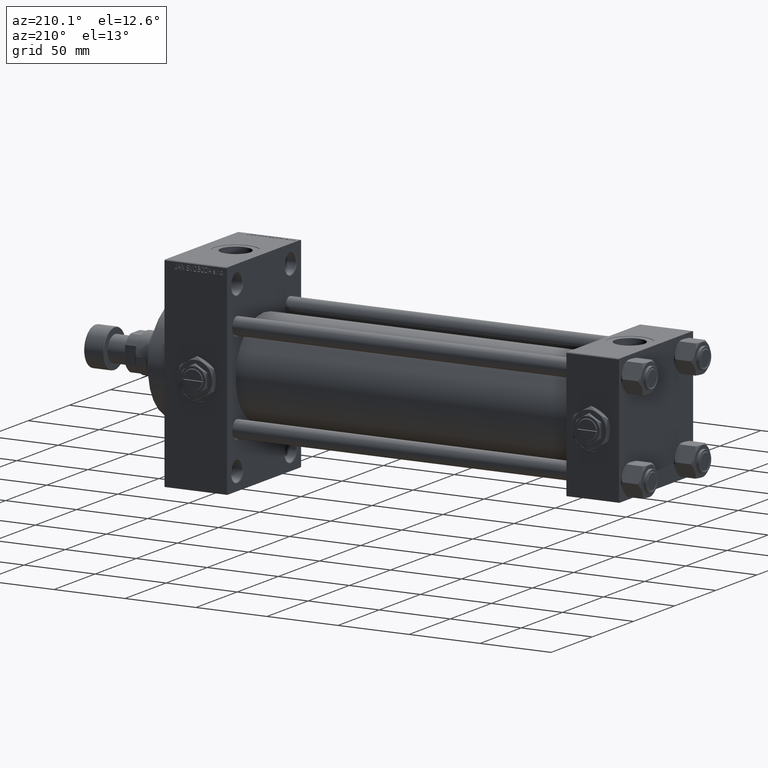
[diagram: clean part render]
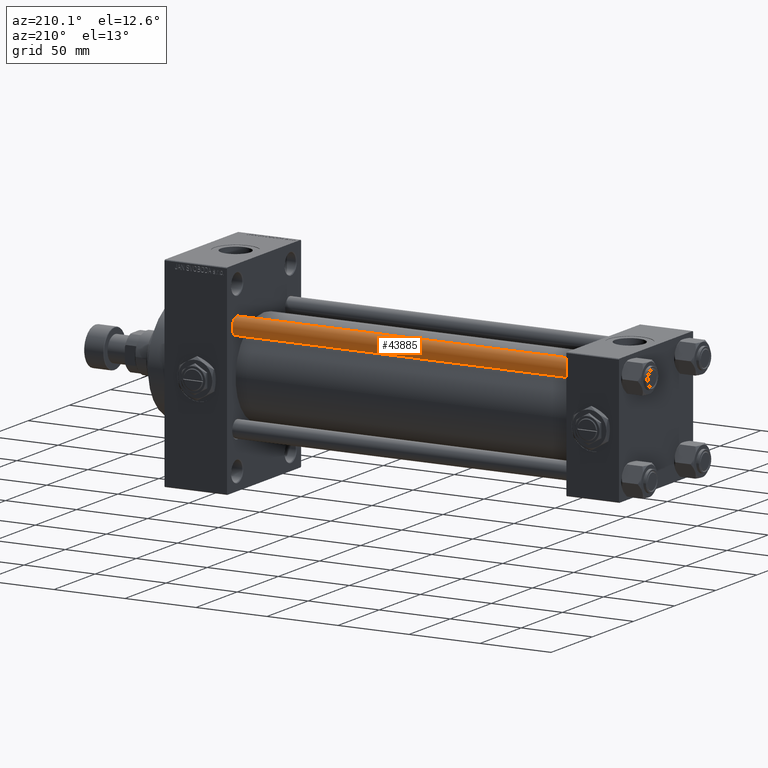
[diagram: same view with one face highlighted and labeled with its STEP entity id]
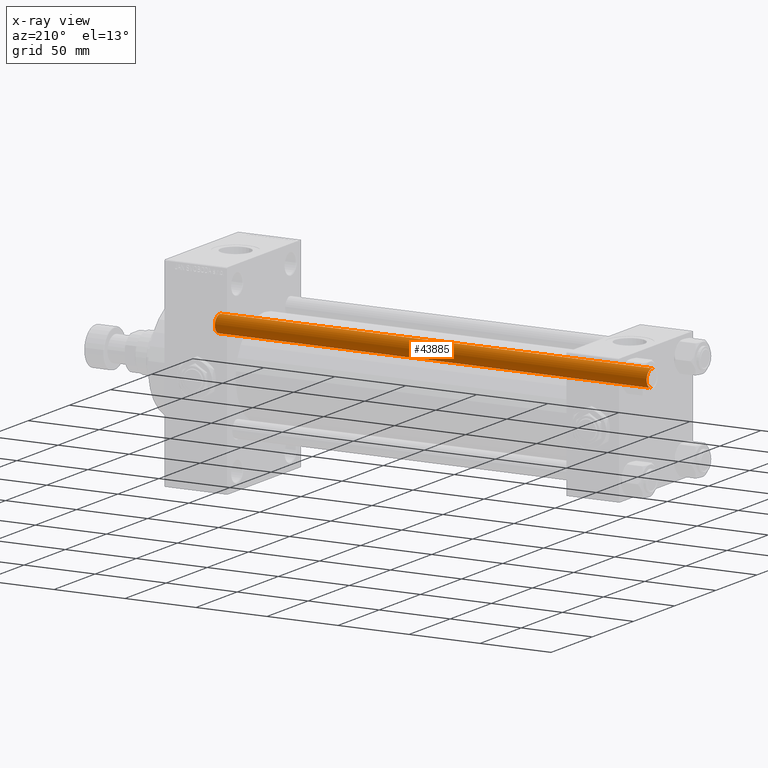
[diagram: x-ray of the same camera — body ghosted, the highlighted face saturated]
A machine part, auxiliary view. The second image highlights one B-rep face of the part: STEP entity #43885.
The next image is the same camera in x-ray: the body ghosted, the highlighted face saturated — about 0% of this face is hidden behind the body in this view.
In plain terms, the highlighted cylindrical surface (edge-blend (fillet) strip) has radius 6 mm, axis along (-1, -0, 0).
Its self-contained STEP definition (entity closure, byte-faithful):
#77 = CARTESIAN_POINT ( 'NONE',  ( 6.000000000000000888, 7.347880794884120722E-16, 0.5000000000000004441 ) ) ;
#1601 = DIRECTION ( 'NONE',  ( -1.000000000000000000, 0.000000000000000000, 0.000000000000000000 ) ) ;
#6086 = DIRECTION ( 'NONE',  ( -0.000000000000000000, -0.000000000000000000, -1.000000000000000000 ) ) ;
#6641 = CARTESIAN_POINT ( 'NONE',  ( -6.000000000000000888, 0.000000000000000000, 0.5000000000000004441 ) ) ;
#7042 = EDGE_CURVE ( 'NONE', #33919, #38516, #42741, .T. ) ;
#8152 = VECTOR ( 'NONE', #46705, 1000.000000000000000 ) ;
#8568 = CARTESIAN_POINT ( 'NONE',  ( 0.000000000000000000, 0.000000000000000000, 304.5000000000000000 ) ) ;
#9635 = CARTESIAN_POINT ( 'NONE',  ( 0.000000000000000000, 0.000000000000000000, 305.0000000000000000 ) ) ;
#10229 = CARTESIAN_POINT ( 'NONE',  ( -6.000000000000000888, 0.000000000000000000, 304.5000000000000000 ) ) ;
#12082 = CARTESIAN_POINT ( 'NONE',  ( -6.000000000000000888, 0.000000000000000000, 305.0000000000000000 ) ) ;
#12837 = LINE ( 'NONE', #12082, #26423 ) ;
#15697 = ORIENTED_EDGE ( 'NONE', *, *, #32871, .F. ) ;
#18672 = AXIS2_PLACEMENT_3D ( 'NONE', #9635, #6086, #1601 ) ;
#18881 = ORIENTED_EDGE ( 'NONE', *, *, #7042, .T. ) ;
#20658 = EDGE_CURVE ( 'NONE', #28627, #28642, #31015, .T. ) ;
#21036 = ORIENTED_EDGE ( 'NONE', *, *, #39282, .T. ) ;
#21554 = DIRECTION ( 'NONE',  ( 1.000000000000000000, 0.000000000000000000, 0.000000000000000000 ) ) ;
#24107 = DIRECTION ( 'NONE',  ( 1.000000000000000000, 0.000000000000000000, 0.000000000000000000 ) ) ;
#24355 = DIRECTION ( 'NONE',  ( -0.000000000000000000, -0.000000000000000000, 1.000000000000000000 ) ) ;
#26423 = VECTOR ( 'NONE', #34729, 1000.000000000000000 ) ;
#28627 = VERTEX_POINT ( 'NONE', #10229 ) ;
#28642 = VERTEX_POINT ( 'NONE', #32647 ) ;
#31015 = CIRCLE ( 'NONE', #37444, 6.000000000000000888 ) ;
#31605 = CARTESIAN_POINT ( 'NONE',  ( 6.000000000000000888, 7.347880794884120722E-16, 305.0000000000000000 ) ) ;
#32644 = DIRECTION ( 'NONE',  ( 0.000000000000000000, 0.000000000000000000, -1.000000000000000000 ) ) ;
#32647 = CARTESIAN_POINT ( 'NONE',  ( 6.000000000000000888, 7.347880794884120722E-16, 304.5000000000000000 ) ) ;
#32871 = EDGE_CURVE ( 'NONE', #28627, #38516, #12837, .T. ) ;
#33919 = VERTEX_POINT ( 'NONE', #77 ) ;
#34729 = DIRECTION ( 'NONE',  ( -0.000000000000000000, -0.000000000000000000, -1.000000000000000000 ) ) ;
#34883 = LINE ( 'NONE', #31605, #8152 ) ;
#36432 = CARTESIAN_POINT ( 'NONE',  ( 0.000000000000000000, 0.000000000000000000, 0.5000000000000004441 ) ) ;
#36449 = ORIENTED_EDGE ( 'NONE', *, *, #20658, .T. ) ;
#37444 = AXIS2_PLACEMENT_3D ( 'NONE', #8568, #32644, #21554 ) ;
#38516 = VERTEX_POINT ( 'NONE', #6641 ) ;
#39282 = EDGE_CURVE ( 'NONE', #28642, #33919, #34883, .T. ) ;
#40580 = CYLINDRICAL_SURFACE ( 'NONE', #18672, 6.000000000000000888 ) ;
#40705 = EDGE_LOOP ( 'NONE', ( #36449, #21036, #18881, #15697 ) ) ;
#42741 = CIRCLE ( 'NONE', #45934, 6.000000000000000888 ) ;
#43865 = FACE_OUTER_BOUND ( 'NONE', #40705, .T. ) ;
#43885 = ADVANCED_FACE ( 'NONE', ( #43865 ), #40580, .T. ) ;
#45934 = AXIS2_PLACEMENT_3D ( 'NONE', #36432, #24355, #24107 ) ;
#46705 = DIRECTION ( 'NONE',  ( -0.000000000000000000, -0.000000000000000000, -1.000000000000000000 ) ) ;